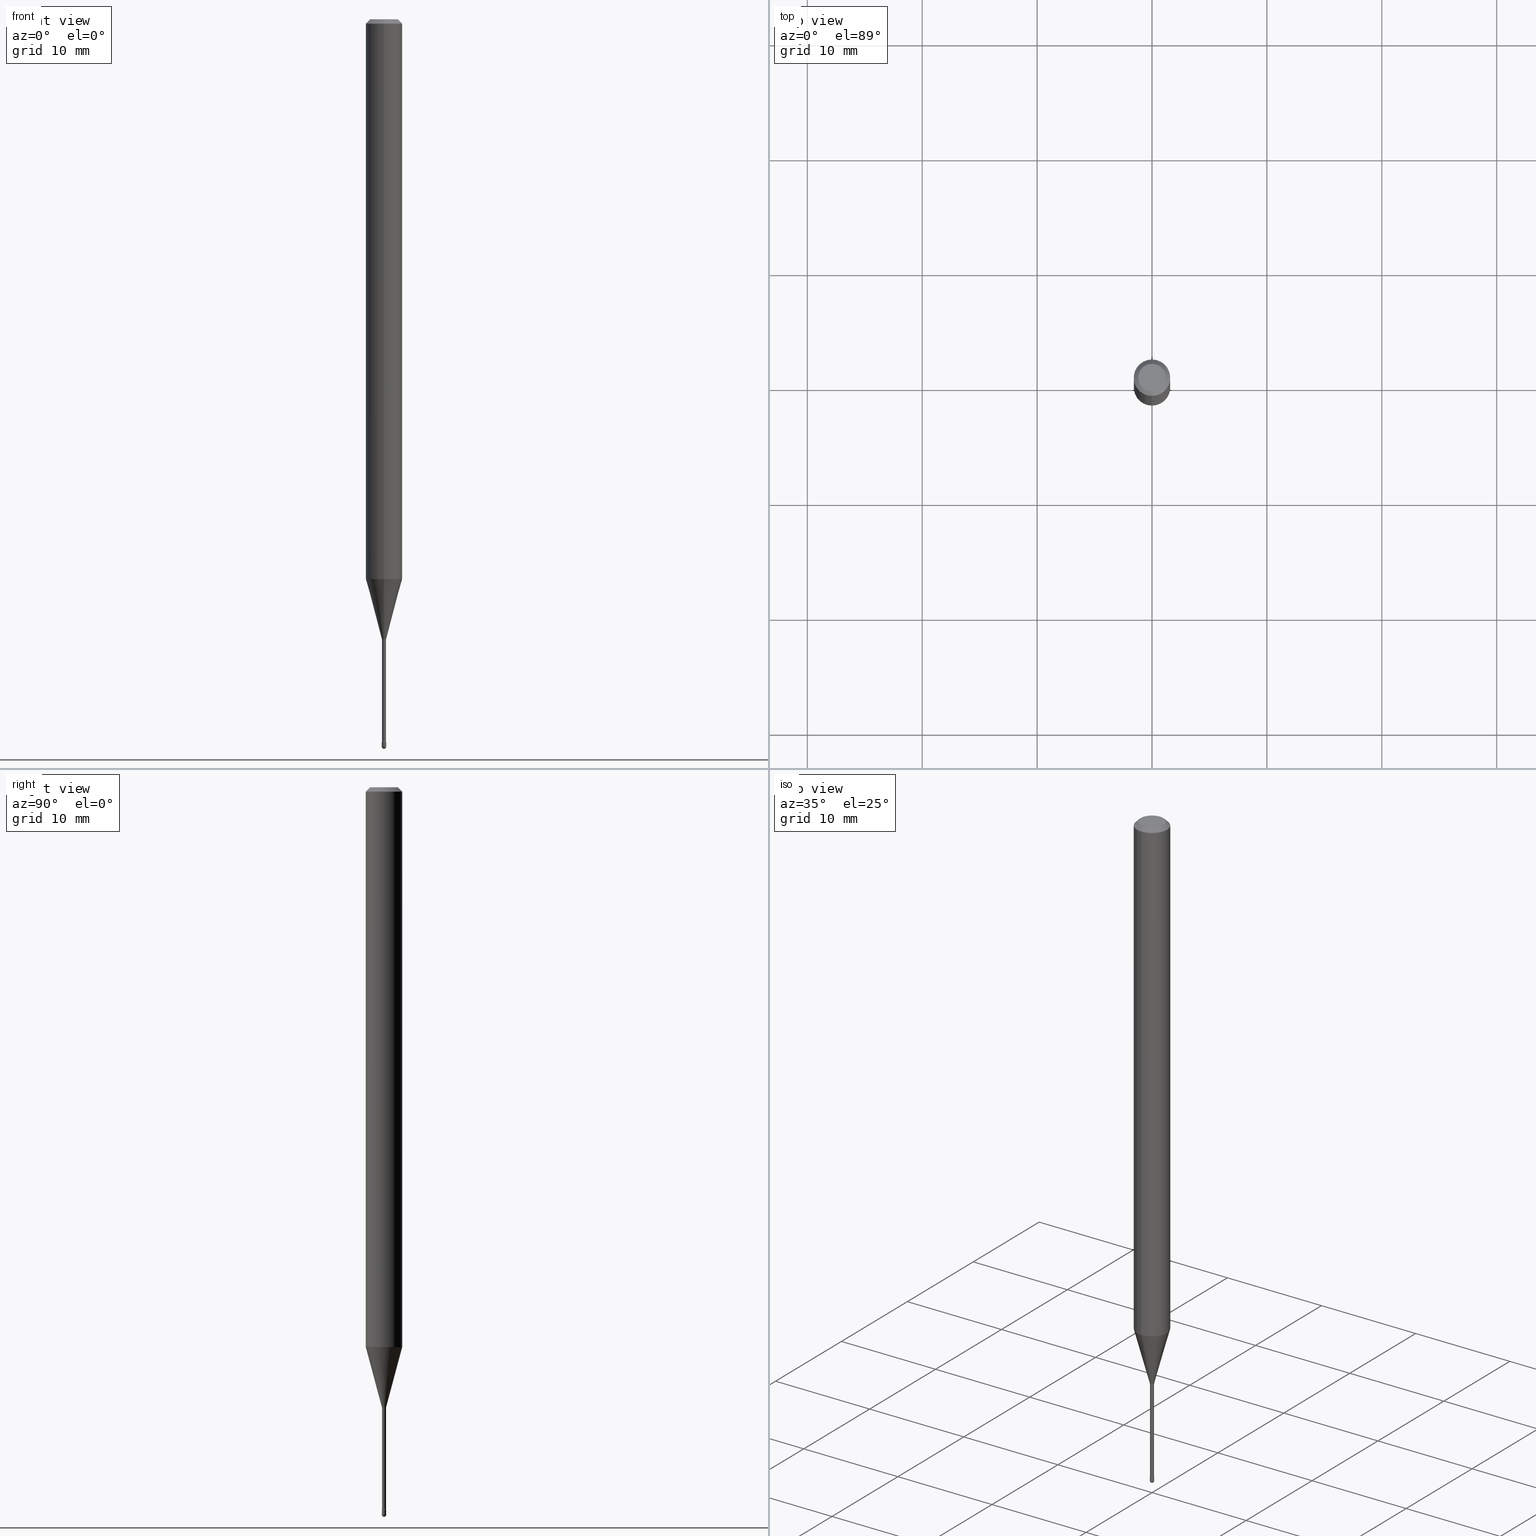
[diagram: canonical four-view strip — front | top / right | iso, engineering-drawing reading convention]
A machine part, canonical four-view strip (front | top / right | iso — engineering-drawing reading convention). The complete STEP part file that produces these views, byte-faithful:
ISO-10303-21;
HEADER;
FILE_DESCRIPTION (( 'STEP AP203' ),
    '1' );
FILE_NAME ('03968.STEP',
    '2024-04-09T21:31:44',
    ( '' ),
    ( '' ),
    'SwSTEP 2.0',
    'SolidWorks 2023',
    '' );
FILE_SCHEMA (( 'CONFIG_CONTROL_DESIGN' ));
ENDSEC;

DATA;
#1 = DIRECTION ( 'NONE',  ( 2.445474421698968540E-29, -3.491473297107723247E-15, -1.000000000000000000 ) ) ;
#2 = PERSON ( 'UNSPECIFIED', 'UNSPECIFIED', 'UNSPECIFIED', ('UNSPECIFIED'), ('UNSPECIFIED'), ('UNSPECIFIED') ) ;
#3 = CARTESIAN_POINT ( 'NONE',  ( -5.279896712708281704E-17, -0.007561112605671394156, -2.123092501787273267 ) ) ;
#4 = APPROVAL_ROLE ( '' ) ;
#5 = DIRECTION ( 'NONE',  ( 4.937700262164548042E-15, 0.7071067811865451302, -0.7071067811865499042 ) ) ;
#6 =( LENGTH_UNIT ( ) NAMED_UNIT ( * ) SI_UNIT ( $, .METRE. ) );
#7 = CYLINDRICAL_SURFACE ( 'NONE', #492, 0.007050000000000006782 ) ;
#8 = APPROVAL_STATUS ( 'not_yet_approved' ) ;
#9 = DIRECTION ( 'NONE',  ( -2.445474421698968540E-29, 3.491473297107723247E-15, 1.000000000000000000 ) ) ;
#10 = TOROIDAL_SURFACE ( 'NONE', #489, 0.02205000000000000016, 0.01500000000000002373 ) ;
#11 = CIRCLE ( 'NONE', #258, 0.04749999999999999362 ) ;
#12 = SECURITY_CLASSIFICATION_LEVEL ( 'unclassified' ) ;
#13 = CARTESIAN_POINT ( 'NONE',  ( 3.316907271900976096E-16, 0.04749999999999999362, 3.181801080601721804E-17 ) ) ;
#14 = ADVANCED_FACE ( 'NONE', ( #355 ), #7, .T. ) ;
#15 = FACE_OUTER_BOUND ( 'NONE', #298, .T. ) ;
#16 = PERSON_AND_ORGANIZATION ( #2, #315 ) ;
#17 = DIMENSIONAL_EXPONENTS ( 1.000000000000000000, 0.000000000000000000, 0.000000000000000000, 0.000000000000000000, 0.000000000000000000, 0.000000000000000000, 0.000000000000000000 ) ;
#18 = PERSON_AND_ORGANIZATION ( #2, #315 ) ;
#19 = VECTOR ( 'NONE', #525, 39.37007874015748143 ) ;
#20 = DIRECTION ( 'NONE',  ( -6.982962677686265922E-15, -1.000000000000000000, 3.491473297107723247E-15 ) ) ;
#21 = SECURITY_CLASSIFICATION ( '', '', #12 ) ;
#22 = DIRECTION ( 'NONE',  ( 6.982962677686265922E-15, 1.000000000000000000, -3.491473297107723247E-15 ) ) ;
#23 = EDGE_CURVE ( 'NONE', #381, #342, #316, .T. ) ;
#24 = CC_DESIGN_PERSON_AND_ORGANIZATION_ASSIGNMENT ( #160, #113, ( #21 ) ) ;
#25 = AXIS2_PLACEMENT_3D ( 'NONE', #116, #70, #158 ) ;
#26 = AXIS2_PLACEMENT_3D ( 'NONE', #554, #365, #132 ) ;
#27 = LOCAL_TIME ( 17, 31, 44.00000000000000000, #537 ) ;
#28 = VERTEX_POINT ( 'NONE', #50 ) ;
#29 = EDGE_CURVE ( 'NONE', #34, #559, #229, .T. ) ;
#30 = ORIENTED_EDGE ( 'NONE', *, *, #157, .F. ) ;
#31 = VERTEX_POINT ( 'NONE', #189 ) ;
#32 = DIRECTION ( 'NONE',  ( -2.445474421698968540E-29, 3.491473297107723247E-15, 1.000000000000000000 ) ) ;
#33 = DIRECTION ( 'NONE',  ( 2.445474421698967980E-29, -3.491473297107723247E-15, -1.000000000000000000 ) ) ;
#34 = VERTEX_POINT ( 'NONE', #97 ) ;
#35 = MANIFOLD_SOLID_BREP ( 'Body-Move/Copy2[2]', #124 ) ;
#36 = PERSON_AND_ORGANIZATION ( #2, #315 ) ;
#37 = CYLINDRICAL_SURFACE ( 'NONE', #82, 0.007050000000000006782 ) ;
#38 = CARTESIAN_POINT ( 'NONE',  ( 3.840629472727447874E-16, 0.04749999999999999362, -2.485923956665947867E-16 ) ) ;
#39 = ORIENTED_EDGE ( 'NONE', *, *, #308, .T. ) ;
#40 = CIRCLE ( 'NONE', #324, 0.06250000000000000000 ) ;
#41 = AXIS2_PLACEMENT_3D ( 'NONE', #172, #337, #479 ) ;
#42 = ORIENTED_EDGE ( 'NONE', *, *, #190, .F. ) ;
#43 = FACE_OUTER_BOUND ( 'NONE', #349, .T. ) ;
#44 = VERTEX_POINT ( 'NONE', #3 ) ;
#45 = DIRECTION ( 'NONE',  ( -2.445474421698968540E-29, 3.491473297107723247E-15, 1.000000000000000000 ) ) ;
#46 = DIRECTION ( 'NONE',  ( -6.982962677686265922E-15, -1.000000000000000000, 0.000000000000000000 ) ) ;
#47 = CARTESIAN_POINT ( 'NONE',  ( 6.095330999416453954E-29, -8.702517237066541600E-15, -2.492500000000000160 ) ) ;
#48 = VECTOR ( 'NONE', #5, 39.37007874015748143 ) ;
#49 =( GEOMETRIC_REPRESENTATION_CONTEXT ( 3 ) GLOBAL_UNCERTAINTY_ASSIGNED_CONTEXT ( ( #395 ) ) GLOBAL_UNIT_ASSIGNED_CONTEXT ( ( #408, #150, #62 ) ) REPRESENTATION_CONTEXT ( 'NONE', 'WORKASPACE' ) );
#50 = CARTESIAN_POINT ( 'NONE',  ( 5.169198402660797072E-17, 0.007049999999991379135, -2.473353426265656907 ) ) ;
#51 = DIRECTION ( 'NONE',  ( 6.982962677686265922E-15, 1.000000000000000000, 0.000000000000000000 ) ) ;
#52 = CALENDAR_DATE ( 2024, 9, 4 ) ;
#53 = DIRECTION ( 'NONE',  ( 6.982962677686265922E-15, 1.000000000000000000, -3.483106191921935554E-15 ) ) ;
#54 = DIRECTION ( 'NONE',  ( 1.000000000000000000, -6.982962677686269077E-15, 0.000000000000000000 ) ) ;
#55 = CARTESIAN_POINT ( 'NONE',  ( 3.668211632548473147E-31, -5.237209945661613369E-17, -0.01500000000000008271 ) ) ;
#56 = DIRECTION ( 'NONE',  ( -6.982962677686266711E-15, -1.000000000000000000, 0.000000000000000000 ) ) ;
#57 = DIRECTION ( 'NONE',  ( -1.000000000000000000, 6.982962677686265922E-15, -4.883557194083112901E-29 ) ) ;
#58 = CALENDAR_DATE ( 2024, 9, 4 ) ;
#59 = CARTESIAN_POINT ( 'NONE',  ( 5.009326287114761939E-17, 0.007049999999992573492, -2.126974787463811190 ) ) ;
#60 = AXIS2_PLACEMENT_3D ( 'NONE', #262, #276, #461 ) ;
#61 = CIRCLE ( 'NONE', #560, 0.007050000000000014588 ) ;
#62 =( NAMED_UNIT ( * ) SI_UNIT ( $, .STERADIAN. ) SOLID_ANGLE_UNIT ( ) );
#63 = EDGE_CURVE ( 'NONE', #222, #28, #564, .T. ) ;
#64 = DIRECTION ( 'NONE',  ( -4.851104656540964275E-15, -0.7071067811865500152, -0.7071067811865450192 ) ) ;
#65 = APPLICATION_PROTOCOL_DEFINITION ( 'international standard', 'config_control_design', 1994, #96 ) ;
#66 = APPROVAL ( #287, 'UNSPECIFIED' ) ;
#67 = CARTESIAN_POINT ( 'NONE',  ( 6.095330999416453954E-29, -8.702517237066541600E-15, -2.492500000000000160 ) ) ;
#68 = EDGE_CURVE ( 'NONE', #44, #476, #527, .T. ) ;
#69 = DIRECTION ( 'NONE',  ( 1.000000000000000000, -6.982962677686269077E-15, 0.000000000000000000 ) ) ;
#70 = DIRECTION ( 'NONE',  ( -2.445474421698968540E-29, 3.491473297107723247E-15, 1.000000000000000000 ) ) ;
#71 = CONICAL_SURFACE ( 'NONE', #542, 0.06250000000000000000, 0.7853981633974483900 ) ;
#72 = CARTESIAN_POINT ( 'NONE',  ( 6.095330999416453954E-29, -8.702517237066541600E-15, -2.492500000000000160 ) ) ;
#73 = PLANE ( 'NONE',  #322 ) ;
#74 = AXIS2_PLACEMENT_3D ( 'NONE', #268, #463, #240 ) ;
#75 = ADVANCED_FACE ( 'NONE', ( #153 ), #280, .T. ) ;
#76 = FACE_OUTER_BOUND ( 'NONE', #163, .T. ) ;
#77 = EDGE_CURVE ( 'NONE', #326, #89, #283, .T. ) ;
#78 = ORIENTED_EDGE ( 'NONE', *, *, #63, .T. ) ;
#79 = ORIENTED_EDGE ( 'NONE', *, *, #306, .F. ) ;
#80 = DIRECTION ( 'NONE',  ( 7.105427357601000281E-15, 1.000000000000000000, 0.000000000000000000 ) ) ;
#81 = AXIS2_PLACEMENT_3D ( 'NONE', #194, #369, #69 ) ;
#82 = AXIS2_PLACEMENT_3D ( 'NONE', #225, #135, #490 ) ;
#83 = EDGE_LOOP ( 'NONE', ( #388, #197, #178, #441 ) ) ;
#84 = AXIS2_PLACEMENT_3D ( 'NONE', #72, #252, #475 ) ;
#85 = EDGE_LOOP ( 'NONE', ( #409, #95 ) ) ;
#86 = CARTESIAN_POINT ( 'NONE',  ( 4.690561246983147435E-29, -6.696847530677596410E-15, -1.918057782720306470 ) ) ;
#87 = ORIENTED_EDGE ( 'NONE', *, *, #29, .F. ) ;
#88 = CARTESIAN_POINT ( 'NONE',  ( 5.201450494285011202E-29, -7.426292778619762925E-15, -2.126974787463811190 ) ) ;
#89 = VERTEX_POINT ( 'NONE', #400 ) ;
#90 = EDGE_LOOP ( 'NONE', ( #78, #128, #431, #437 ) ) ;
#91 = LINE ( 'NONE', #340, #48 ) ;
#92 = DIRECTION ( 'NONE',  ( 1.000000000000000000, 0.000000000000000000, 0.000000000000000000 ) ) ;
#93 = AXIS2_PLACEMENT_3D ( 'NONE', #273, #458, #54 ) ;
#94 = CARTESIAN_POINT ( 'NONE',  ( -0.007499999999999998855, -8.622167551508499156E-15, -2.492500000000000160 ) ) ;
#95 = ORIENTED_EDGE ( 'NONE', *, *, #471, .F. ) ;
#96 = APPLICATION_CONTEXT ( 'configuration controlled 3d designs of mechanical parts and assemblies' ) ;
#97 = CARTESIAN_POINT ( 'NONE',  ( 6.113992702821284393E-29, -8.728244104558185096E-15, -2.500000000000000000 ) ) ;
#98 = ADVANCED_FACE ( 'NONE', ( #184 ), #451, .T. ) ;
#99 = CARTESIAN_POINT ( 'NONE',  ( 0.007499999999999998855, -8.727830476773153796E-15, -2.492500000000000160 ) ) ;
#100 = CARTESIAN_POINT ( 'NONE',  ( -5.279896712708281704E-17, -0.007561112605671394156, -2.123092501787273267 ) ) ;
#101 = DIRECTION ( 'NONE',  ( 6.982962677686265922E-15, 1.000000000000000000, -3.483106191921935554E-15 ) ) ;
#102 = CIRCLE ( 'NONE', #421, 0.007499999999999999722 ) ;
#103 = DIRECTION ( 'NONE',  ( -6.982962677686265922E-15, -1.000000000000000000, 0.000000000000000000 ) ) ;
#104 = CARTESIAN_POINT ( 'NONE',  ( 4.440892098501092576E-16, 0.06249999999999329009, -1.918057782720306692 ) ) ;
#105 = CARTESIAN_POINT ( 'NONE',  ( 5.237222008270756882E-17, 0.007499999999991352126, -2.476999999999999869 ) ) ;
#106 = EDGE_CURVE ( 'NONE', #31, #513, #168, .T. ) ;
#107 = CARTESIAN_POINT ( 'NONE',  ( 6.095330999416453954E-29, -8.702517237066541600E-15, -2.492500000000000160 ) ) ;
#108 = PERSON_AND_ORGANIZATION_ROLE ( 'creator' ) ;
#109 = DIRECTION ( 'NONE',  ( -6.982962677686265922E-15, -1.000000000000000000, 3.491473297107723247E-15 ) ) ;
#110 = ORIENTED_EDGE ( 'NONE', *, *, #312, .T. ) ;
#111 = LINE ( 'NONE', #464, #192 ) ;
#112 = VECTOR ( 'NONE', #438, 39.37007874015748143 ) ;
#113 = PERSON_AND_ORGANIZATION_ROLE ( 'classification_officer' ) ;
#114 = ORIENTED_EDGE ( 'NONE', *, *, #77, .F. ) ;
#115 = CARTESIAN_POINT ( 'NONE',  ( -0.007499999999999998855, 5.329070518200750581E-17, -3.689201317691178390E-31 ) ) ;
#116 = CARTESIAN_POINT ( 'NONE',  ( 6.057440142548344634E-29, -8.648379356935830390E-15, -2.476999999999999869 ) ) ;
#117 = ORIENTED_EDGE ( 'NONE', *, *, #478, .T. ) ;
#118 = CARTESIAN_POINT ( 'NONE',  ( -5.237222008258655879E-17, -0.007500000000008666401, -2.476999999999999869 ) ) ;
#119 = CIRCLE ( 'NONE', #246, 0.007561112605663981683 ) ;
#120 = VERTEX_POINT ( 'NONE', #472 ) ;
#121 = ORIENTED_EDGE ( 'NONE', *, *, #233, .F. ) ;
#122 = ORIENTED_EDGE ( 'NONE', *, *, #224, .T. ) ;
#123 = VECTOR ( 'NONE', #497, 39.37007874015748143 ) ;
#124 = CLOSED_SHELL ( 'NONE', ( #383, #14, #426, #389, #279, #250, #75, #514, #376, #430, #187, #130, #501, #366 ) ) ;
#125 = EDGE_CURVE ( 'NONE', #518, #120, #502, .T. ) ;
#126 = DIRECTION ( 'NONE',  ( -6.982962677686265922E-15, -1.000000000000000000, 0.000000000000000000 ) ) ;
#127 = ORIENTED_EDGE ( 'NONE', *, *, #452, .T. ) ;
#128 = ORIENTED_EDGE ( 'NONE', *, *, #351, .T. ) ;
#129 = ORIENTED_EDGE ( 'NONE', *, *, #68, .F. ) ;
#130 = ADVANCED_FACE ( 'NONE', ( #274 ), #219, .F. ) ;
#131 = DIRECTION ( 'NONE',  ( -2.445474421698968540E-29, 3.491473297107723247E-15, 1.000000000000000000 ) ) ;
#132 = DIRECTION ( 'NONE',  ( 1.000000000000000000, -6.982962677686268288E-15, 0.000000000000000000 ) ) ;
#133 = ORIENTED_EDGE ( 'NONE', *, *, #157, .T. ) ;
#134 = DIRECTION ( 'NONE',  ( -6.982962677686265922E-15, -1.000000000000000000, 3.491473297107722064E-15 ) ) ;
#135 = DIRECTION ( 'NONE',  ( -2.445474421698968540E-29, 3.491473297107723247E-15, 1.000000000000000000 ) ) ;
#136 = EDGE_LOOP ( 'NONE', ( #179, #256 ) ) ;
#137 = CARTESIAN_POINT ( 'NONE',  ( 5.191968408021648004E-29, -7.412720777279894928E-15, -2.123092501787273267 ) ) ;
#138 = AXIS2_PLACEMENT_3D ( 'NONE', #313, #417, #103 ) ;
#139 = FACE_OUTER_BOUND ( 'NONE', #427, .T. ) ;
#140 = CC_DESIGN_APPROVAL ( #66, ( #359 ) ) ;
#141 = EDGE_CURVE ( 'NONE', #382, #378, #11, .T. ) ;
#142 = DIRECTION ( 'NONE',  ( -2.445474421698968540E-29, 3.491473297107723247E-15, 1.000000000000000000 ) ) ;
#143 = EDGE_CURVE ( 'NONE', #513, #559, #325, .T. ) ;
#144 = CARTESIAN_POINT ( 'NONE',  ( 0.000000000000000000, 0.000000000000000000, 0.000000000000000000 ) ) ;
#145 = DIRECTION ( 'NONE',  ( 1.000000000000000000, -7.105427357601001070E-15, 4.926315410059227028E-29 ) ) ;
#146 = APPLICATION_CONTEXT ( 'configuration controlled 3d designs of mechanical parts and assemblies' ) ;
#147 = DIRECTION ( 'NONE',  ( -2.445474421698967980E-29, 3.491473297107723247E-15, 1.000000000000000000 ) ) ;
#148 = CARTESIAN_POINT ( 'NONE',  ( -4.364351673553916201E-16, -0.06250000000000000000, 6.962904799604786922E-16 ) ) ;
#149 = DESIGN_CONTEXT ( 'detailed design', #96, 'design' ) ;
#150 =( NAMED_UNIT ( * ) PLANE_ANGLE_UNIT ( ) SI_UNIT ( $, .RADIAN. ) );
#151 = CARTESIAN_POINT ( 'NONE',  ( 0.007499999999999999722, -8.700771496397117730E-15, -2.476999999999999869 ) ) ;
#152 = CIRCLE ( 'NONE', #307, 0.06250000000000000000 ) ;
#153 = FACE_OUTER_BOUND ( 'NONE', #449, .T. ) ;
#154 = FACE_OUTER_BOUND ( 'NONE', #522, .T. ) ;
#155 = FACE_OUTER_BOUND ( 'NONE', #556, .T. ) ;
#156 = FACE_OUTER_BOUND ( 'NONE', #552, .T. ) ;
#157 = EDGE_CURVE ( 'NONE', #34, #31, #254, .T. ) ;
#158 = DIRECTION ( 'NONE',  ( -6.982962677686265922E-15, -1.000000000000000000, 0.000000000000000000 ) ) ;
#159 = EDGE_CURVE ( 'NONE', #28, #222, #61, .T. ) ;
#160 = PERSON_AND_ORGANIZATION ( #2, #315 ) ;
#161 = AXIS2_PLACEMENT_3D ( 'NONE', #328, #508, #425 ) ;
#162 = CLOSED_SHELL ( 'NONE', ( #565, #253, #541, #98, #169 ) ) ;
#163 = EDGE_LOOP ( 'NONE', ( #392, #440, #117, #114 ) ) ;
#164 = APPROVAL_DATE_TIME ( #539, #66 ) ;
#165 = EDGE_CURVE ( 'NONE', #28, #120, #553, .T. ) ;
#166 = VECTOR ( 'NONE', #181, 39.37007874015748143 ) ;
#167 = CC_DESIGN_SECURITY_CLASSIFICATION ( #21, ( #563 ) ) ;
#168 = CIRCLE ( 'NONE', #247, 0.007499999999999998855 ) ;
#169 = ADVANCED_FACE ( 'NONE', ( #428 ), #548, .T. ) ;
#170 = DATE_AND_TIME ( #433, #228 ) ;
#171 = ORIENTED_EDGE ( 'NONE', *, *, #205, .F. ) ;
#172 = CARTESIAN_POINT ( 'NONE',  ( 0.000000000000000000, 0.000000000000000000, 0.000000000000000000 ) ) ;
#173 = ORIENTED_EDGE ( 'NONE', *, *, #106, .T. ) ;
#174 = ORIENTED_EDGE ( 'NONE', *, *, #306, .T. ) ;
#175 = CIRCLE ( 'NONE', #93, 0.007499999999999998855 ) ;
#176 = DIRECTION ( 'NONE',  ( -2.438088387897960049E-29, 3.491481338843145188E-15, 1.000000000000000000 ) ) ;
#177 = CC_DESIGN_PERSON_AND_ORGANIZATION_ASSIGNMENT ( #36, #245, ( #363 ) ) ;
#178 = ORIENTED_EDGE ( 'NONE', *, *, #210, .T. ) ;
#179 = ORIENTED_EDGE ( 'NONE', *, *, #419, .T. ) ;
#180 = PLANE ( 'NONE',  #206 ) ;
#181 = DIRECTION ( 'NONE',  ( -2.445474421698968540E-29, 3.491473297107723247E-15, 1.000000000000000000 ) ) ;
#182 = EDGE_CURVE ( 'NONE', #397, #476, #529, .T. ) ;
#183 = AXIS2_PLACEMENT_3D ( 'NONE', #404, #524, #46 ) ;
#184 = FACE_OUTER_BOUND ( 'NONE', #304, .T. ) ;
#185 = DATE_AND_TIME ( #52, #208 ) ;
#186 = AXIS2_PLACEMENT_3D ( 'NONE', #47, #465, #51 ) ;
#187 = ADVANCED_FACE ( 'NONE', ( #311 ), #180, .F. ) ;
#188 = PERSON_AND_ORGANIZATION ( #2, #315 ) ;
#189 = CARTESIAN_POINT ( 'NONE',  ( 5.237222008270768592E-17, 0.007499999999991259318, -2.492500000000000160 ) ) ;
#190 = EDGE_CURVE ( 'NONE', #555, #31, #561, .T. ) ;
#191 = CARTESIAN_POINT ( 'NONE',  ( -3.773273898774340269E-16, -0.04749999999999999362, 8.309756755863891883E-17 ) ) ;
#192 = VECTOR ( 'NONE', #282, 39.37007874015748143 ) ;
#193 = AXIS2_PLACEMENT_3D ( 'NONE', #533, #370, #92 ) ;
#194 = CARTESIAN_POINT ( 'NONE',  ( 6.095330999416453954E-29, -8.702517237066541600E-15, -2.492500000000000160 ) ) ;
#195 = CARTESIAN_POINT ( 'NONE',  ( 6.048508650603792991E-29, -8.635667332170297409E-15, -2.473353426265656907 ) ) ;
#196 = EDGE_CURVE ( 'NONE', #378, #342, #536, .T. ) ;
#197 = ORIENTED_EDGE ( 'NONE', *, *, #196, .T. ) ;
#198 = CARTESIAN_POINT ( 'NONE',  ( -1.539743270429219861E-16, -0.02205000000000867724, -2.473353426265656907 ) ) ;
#199 = CALENDAR_DATE ( 2024, 9, 4 ) ;
#200 = CIRCLE ( 'NONE', #138, 0.007049999999999998976 ) ;
#201 = CALENDAR_DATE ( 2024, 9, 4 ) ;
#202 = CARTESIAN_POINT ( 'NONE',  ( 2.023593691585208939E-45, -2.889065420343938692E-31, -8.274741405397793394E-17 ) ) ;
#203 = DIRECTION ( 'NONE',  ( -6.982962677686265922E-15, -1.000000000000000000, 0.000000000000000000 ) ) ;
#204 = EDGE_CURVE ( 'NONE', #89, #326, #200, .T. ) ;
#205 = EDGE_CURVE ( 'NONE', #559, #555, #175, .T. ) ;
#206 = AXIS2_PLACEMENT_3D ( 'NONE', #105, #147, #462 ) ;
#207 = ORIENTED_EDGE ( 'NONE', *, *, #196, .F. ) ;
#208 = LOCAL_TIME ( 17, 31, 44.00000000000000000, #456 ) ;
#209 = CC_DESIGN_PERSON_AND_ORGANIZATION_ASSIGNMENT ( #16, #108, ( #563 ) ) ;
#210 = EDGE_CURVE ( 'NONE', #342, #381, #40, .T. ) ;
#211 = EDGE_LOOP ( 'NONE', ( #448, #110, #520, #385 ) ) ;
#212 = ORIENTED_EDGE ( 'NONE', *, *, #23, .F. ) ;
#213 = DIRECTION ( 'NONE',  ( -6.982962677686265922E-15, -1.000000000000000000, 3.483106191921935554E-15 ) ) ;
#214 = ORIENTED_EDGE ( 'NONE', *, *, #224, .F. ) ;
#215 = ORIENTED_EDGE ( 'NONE', *, *, #159, .F. ) ;
#216 = LINE ( 'NONE', #221, #123 ) ;
#217 = ORIENTED_EDGE ( 'NONE', *, *, #182, .F. ) ;
#218 = CONICAL_SURFACE ( 'NONE', #227, 0.007561112605663981683, 0.2617993877991501850 ) ;
#219 = TOROIDAL_SURFACE ( 'NONE', #507, 0.02205000000000004179, 0.01500000000000002720 ) ;
#220 = ORIENTED_EDGE ( 'NONE', *, *, #232, .T. ) ;
#221 = CARTESIAN_POINT ( 'NONE',  ( 5.009326287108710513E-17, 0.007050000000000006782, 4.534585121466366088E-16 ) ) ;
#222 = VERTEX_POINT ( 'NONE', #499 ) ;
#223 = APPLICATION_PROTOCOL_DEFINITION ( 'international standard', 'config_control_design', 1994, #146 ) ;
#224 = EDGE_CURVE ( 'NONE', #555, #379, #111, .T. ) ;
#225 = CARTESIAN_POINT ( 'NONE',  ( -1.169113584055446105E-44, 1.669184350826100908E-30, 4.780733988912460139E-16 ) ) ;
#226 = ORIENTED_EDGE ( 'NONE', *, *, #269, .T. ) ;
#227 = AXIS2_PLACEMENT_3D ( 'NONE', #270, #538, #357 ) ;
#228 = LOCAL_TIME ( 17, 31, 44.00000000000000000, #473 ) ;
#229 = CIRCLE ( 'NONE', #511, 0.007499999999999925129 ) ;
#230 = DATE_TIME_ROLE ( 'creation_date' ) ;
#231 = MANIFOLD_SOLID_BREP ( 'Body-Move/Copy2[1]', #162 ) ;
#232 = EDGE_CURVE ( 'NONE', #222, #518, #469, .T. ) ;
#233 = EDGE_CURVE ( 'NONE', #336, #397, #416, .T. ) ;
#234 = DIRECTION ( 'NONE',  ( -1.000000000000000000, 7.105427357601001070E-15, -4.926315508542082329E-29 ) ) ;
#235 = FACE_OUTER_BOUND ( 'NONE', #547, .T. ) ;
#236 = CARTESIAN_POINT ( 'NONE',  ( 5.372493636223856207E-17, 0.007561112605656569209, -2.123092501787273267 ) ) ;
#237 = DIRECTION ( 'NONE',  ( -2.445468806185136597E-29, 3.491481338843145583E-15, 1.000000000000000000 ) ) ;
#238 = CC_DESIGN_PERSON_AND_ORGANIZATION_ASSIGNMENT ( #290, #327, ( #359 ) ) ;
#239 = SHAPE_DEFINITION_REPRESENTATION ( #277, #251 ) ;
#240 = DIRECTION ( 'NONE',  ( -6.982962677686265922E-15, -1.000000000000000000, 0.000000000000000000 ) ) ;
#241 = CARTESIAN_POINT ( 'NONE',  ( -4.364351673553912750E-16, -0.06250000000000005551, -0.01499999999999986587 ) ) ;
#242 = VECTOR ( 'NONE', #64, 39.37007874015748143 ) ;
#243 = APPROVAL_PERSON_ORGANIZATION ( #373, #374, #540 ) ;
#244 = APPROVAL_STATUS ( 'not_yet_approved' ) ;
#245 = PERSON_AND_ORGANIZATION_ROLE ( 'design_owner' ) ;
#246 = AXIS2_PLACEMENT_3D ( 'NONE', #137, #45, #398 ) ;
#247 = AXIS2_PLACEMENT_3D ( 'NONE', #310, #329, #332 ) ;
#248 = CARTESIAN_POINT ( 'NONE',  ( -4.364351673553447322E-16, -0.06250000000000668909, -1.918057782720306248 ) ) ;
#249 = CYLINDRICAL_SURFACE ( 'NONE', #161, 0.06250000000000000000 ) ;
#250 = ADVANCED_FACE ( 'NONE', ( #156 ), #218, .T. ) ;
#251 = ADVANCED_BREP_SHAPE_REPRESENTATION ( '03968', ( #231, #35, #193 ), #49 ) ;
#252 = DIRECTION ( 'NONE',  ( 1.000000000000000000, -6.982962677686265922E-15, 4.883557194083112340E-29 ) ) ;
#253 = ADVANCED_FACE ( 'NONE', ( #15 ), #531, .T. ) ;
#254 = CIRCLE ( 'NONE', #84, 0.007499999999999925129 ) ;
#255 = AXIS2_PLACEMENT_3D ( 'NONE', #339, #261, #443 ) ;
#256 = ORIENTED_EDGE ( 'NONE', *, *, #423, .T. ) ;
#257 = LINE ( 'NONE', #148, #551 ) ;
#258 = AXIS2_PLACEMENT_3D ( 'NONE', #202, #321, #411 ) ;
#259 = ORIENTED_EDGE ( 'NONE', *, *, #125, .T. ) ;
#260 = CC_DESIGN_DATE_AND_TIME_ASSIGNMENT ( #170, #230, ( #359 ) ) ;
#261 = DIRECTION ( 'NONE',  ( -2.445474421698968540E-29, 3.491473297107723247E-15, 1.000000000000000000 ) ) ;
#262 = CARTESIAN_POINT ( 'NONE',  ( 6.057426232920582713E-29, -8.648399276314471045E-15, -2.476999999999999869 ) ) ;
#263 = ORIENTED_EDGE ( 'NONE', *, *, #68, .T. ) ;
#264 = CARTESIAN_POINT ( 'NONE',  ( 2.489070731061741502E-16, 0.007561112605656570944, -2.123092501787273267 ) ) ;
#265 = AXIS2_PLACEMENT_3D ( 'NONE', #484, #145, #415 ) ;
#266 = ORIENTED_EDGE ( 'NONE', *, *, #318, .T. ) ;
#267 = DIRECTION ( 'NONE',  ( -6.982962677686265922E-15, -1.000000000000000000, 0.000000000000000000 ) ) ;
#268 = CARTESIAN_POINT ( 'NONE',  ( 5.191968408021648004E-29, -7.412720777279894928E-15, -2.123092501787273267 ) ) ;
#269 = EDGE_CURVE ( 'NONE', #513, #333, #414, .T. ) ;
#270 = CARTESIAN_POINT ( 'NONE',  ( 5.191968408021648004E-29, -7.412720777279894928E-15, -2.123092501787273267 ) ) ;
#271 = TOROIDAL_SURFACE ( 'NONE', #338, 0.02205000000000004179, 0.01500000000000002720 ) ;
#272 = CARTESIAN_POINT ( 'NONE',  ( 4.440892098501097506E-16, 0.06249999999999995143, -0.01500000000000030129 ) ) ;
#273 = CARTESIAN_POINT ( 'NONE',  ( 6.095330999416453954E-29, -8.702517237066541600E-15, -2.492500000000000160 ) ) ;
#274 = FACE_OUTER_BOUND ( 'NONE', #347, .T. ) ;
#275 = DIRECTION ( 'NONE',  ( -6.982962677686265133E-15, -1.000000000000000000, 3.491473297107726797E-15 ) ) ;
#276 = DIRECTION ( 'NONE',  ( -2.445468806185136597E-29, 3.491481338843145583E-15, 1.000000000000000000 ) ) ;
#277 = PRODUCT_DEFINITION_SHAPE ( 'NONE', 'NONE',  #359 ) ;
#278 = DIRECTION ( 'NONE',  ( -2.445474421698968540E-29, 3.491473297107723247E-15, 1.000000000000000000 ) ) ;
#279 = ADVANCED_FACE ( 'NONE', ( #446 ), #557, .T. ) ;
#280 = CONICAL_SURFACE ( 'NONE', #74, 0.007561112605663981683, 0.2617993877991501850 ) ;
#281 = CIRCLE ( 'NONE', #265, 0.01500000000000002373 ) ;
#282 = DIRECTION ( 'NONE',  ( -2.445468806185136877E-29, 3.491481338843145188E-15, 1.000000000000000000 ) ) ;
#283 = CIRCLE ( 'NONE', #183, 0.007049999999999998976 ) ;
#284 = DIRECTION ( 'NONE',  ( -2.445474421698968540E-29, 3.491473297107723247E-15, 1.000000000000000000 ) ) ;
#285 = DATE_AND_TIME ( #199, #27 ) ;
#286 = DIRECTION ( 'NONE',  ( 6.982962677686265922E-15, 1.000000000000000000, 0.000000000000000000 ) ) ;
#287 = APPROVAL_STATUS ( 'not_yet_approved' ) ;
#288 = EDGE_CURVE ( 'NONE', #397, #381, #407, .T. ) ;
#289 = CARTESIAN_POINT ( 'NONE',  ( 3.668211632548473147E-31, -5.237209945661613369E-17, -0.01500000000000008271 ) ) ;
#290 = PERSON_AND_ORGANIZATION ( #2, #315 ) ;
#291 = DIRECTION ( 'NONE',  ( 1.000000000000000000, -6.982962677686269077E-15, 0.000000000000000000 ) ) ;
#292 = AXIS2_PLACEMENT_3D ( 'NONE', #405, #1, #101 ) ;
#293 = VECTOR ( 'NONE', #450, 39.37007874015749564 ) ;
#294 = DIRECTION ( 'NONE',  ( -2.445474421698968540E-29, 3.491473297107723247E-15, 1.000000000000000000 ) ) ;
#295 = ORIENTED_EDGE ( 'NONE', *, *, #106, .F. ) ;
#296 = ORIENTED_EDGE ( 'NONE', *, *, #141, .T. ) ;
#297 = AXIS2_PLACEMENT_3D ( 'NONE', #495, #142, #134 ) ;
#298 = EDGE_LOOP ( 'NONE', ( #30, #350, #384, #295 ) ) ;
#299 = DIRECTION ( 'NONE',  ( 1.000000000000000000, -7.105427357601001070E-15, 4.926315410059227028E-29 ) ) ;
#300 = ORIENTED_EDGE ( 'NONE', *, *, #406, .T. ) ;
#301 = FACE_OUTER_BOUND ( 'NONE', #372, .T. ) ;
#302 = EDGE_LOOP ( 'NONE', ( #390, #434, #549, #436 ) ) ;
#303 = ORIENTED_EDGE ( 'NONE', *, *, #471, .T. ) ;
#304 = EDGE_LOOP ( 'NONE', ( #87, #133, #42, #171 ) ) ;
#305 = DIRECTION ( 'NONE',  ( -1.000000000000000000, 6.982962677686265922E-15, -4.883557194083112901E-29 ) ) ;
#306 = EDGE_CURVE ( 'NONE', #44, #336, #119, .T. ) ;
#307 = AXIS2_PLACEMENT_3D ( 'NONE', #410, #413, #498 ) ;
#308 = EDGE_CURVE ( 'NONE', #476, #342, #257, .T. ) ;
#309 = LENGTH_MEASURE_WITH_UNIT ( LENGTH_MEASURE( 0.02539999999999999897 ), #6 );
#310 = CARTESIAN_POINT ( 'NONE',  ( 6.095330999416453954E-29, -8.702517237066541600E-15, -2.492500000000000160 ) ) ;
#311 = FACE_OUTER_BOUND ( 'NONE', #85, .T. ) ;
#312 = EDGE_CURVE ( 'NONE', #336, #326, #281, .T. ) ;
#313 = CARTESIAN_POINT ( 'NONE',  ( 5.201462438341350070E-29, -7.426275674051270553E-15, -2.126974787463811190 ) ) ;
#314 = CONICAL_SURFACE ( 'NONE', #292, 0.06250000000000000000, 0.7853981633974483900 ) ;
#315 = ORGANIZATION ( 'UNSPECIFIED', 'UNSPECIFIED', '' ) ;
#316 = CIRCLE ( 'NONE', #544, 0.06250000000000000000 ) ;
#317 = FACE_OUTER_BOUND ( 'NONE', #83, .T. ) ;
#318 = EDGE_CURVE ( 'NONE', #382, #381, #91, .T. ) ;
#319 = APPROVAL_DATE_TIME ( #459, #374 ) ;
#320 = DIRECTION ( 'NONE',  ( -2.445474421698968540E-29, 3.491473297107723247E-15, 1.000000000000000000 ) ) ;
#321 = DIRECTION ( 'NONE',  ( -2.445474421698968540E-29, 3.491473297107723247E-15, 1.000000000000000000 ) ) ;
#322 = AXIS2_PLACEMENT_3D ( 'NONE', #558, #176, #496 ) ;
#323 = DATE_TIME_ROLE ( 'classification_date' ) ;
#324 = AXIS2_PLACEMENT_3D ( 'NONE', #289, #32, #213 ) ;
#325 = CIRCLE ( 'NONE', #331, 0.007499999999999998855 ) ;
#326 = VERTEX_POINT ( 'NONE', #59 ) ;
#327 = PERSON_AND_ORGANIZATION_ROLE ( 'creator' ) ;
#328 = CARTESIAN_POINT ( 'NONE',  ( -1.169113584055446105E-44, 1.669184350826100908E-30, 4.780733988912460139E-16 ) ) ;
#329 = DIRECTION ( 'NONE',  ( -2.445468806185136597E-29, 3.491481338843145583E-15, 1.000000000000000000 ) ) ;
#330 = AXIS2_PLACEMENT_3D ( 'NONE', #67, #418, #286 ) ;
#331 = AXIS2_PLACEMENT_3D ( 'NONE', #107, #237, #291 ) ;
#332 = DIRECTION ( 'NONE',  ( 1.000000000000000000, -6.982962677686269077E-15, 0.000000000000000000 ) ) ;
#333 = VERTEX_POINT ( 'NONE', #530 ) ;
#334 = ORIENTED_EDGE ( 'NONE', *, *, #190, .T. ) ;
#335 = ORIENTED_EDGE ( 'NONE', *, *, #288, .F. ) ;
#336 = VERTEX_POINT ( 'NONE', #264 ) ;
#337 = DIRECTION ( 'NONE',  ( -2.445468806185136597E-29, 3.491481338843145583E-15, 1.000000000000000000 ) ) ;
#338 = AXIS2_PLACEMENT_3D ( 'NONE', #195, #320, #535 ) ;
#339 = CARTESIAN_POINT ( 'NONE',  ( 5.191968408021648004E-29, -7.412720777279894928E-15, -2.123092501787273267 ) ) ;
#340 = CARTESIAN_POINT ( 'NONE',  ( 4.364351673553919652E-16, 0.06249999999999995143, -0.01500000000000030129 ) ) ;
#341 = ORIENTED_EDGE ( 'NONE', *, *, #233, .T. ) ;
#342 = VERTEX_POINT ( 'NONE', #241 ) ;
#343 = ORIENTED_EDGE ( 'NONE', *, *, #182, .T. ) ;
#344 = CARTESIAN_POINT ( 'NONE',  ( 6.057440142548344634E-29, -8.648379356935830390E-15, -2.476999999999999869 ) ) ;
#345 = ORIENTED_EDGE ( 'NONE', *, *, #312, .F. ) ;
#346 = ORIENTED_EDGE ( 'NONE', *, *, #232, .F. ) ;
#347 = EDGE_LOOP ( 'NONE', ( #521, #485, #220, #259 ) ) ;
#348 = DIRECTION ( 'NONE',  ( -6.982962677686266711E-15, -1.000000000000000000, 3.491473297107723247E-15 ) ) ;
#349 = EDGE_LOOP ( 'NONE', ( #335, #343, #39, #212 ) ) ;
#350 = ORIENTED_EDGE ( 'NONE', *, *, #29, .T. ) ;
#351 = EDGE_CURVE ( 'NONE', #28, #326, #216, .T. ) ;
#352 = AXIS2_PLACEMENT_3D ( 'NONE', #13, #33, #22 ) ;
#353 = LOCAL_TIME ( 17, 31, 44.00000000000000000, #420 ) ;
#354 = DIRECTION ( 'NONE',  ( -2.445474421698968540E-29, 3.491473297107723247E-15, 1.000000000000000000 ) ) ;
#355 = FACE_OUTER_BOUND ( 'NONE', #90, .T. ) ;
#356 = CARTESIAN_POINT ( 'NONE',  ( 3.668211632548473147E-31, -5.237209945661613369E-17, -0.01500000000000008271 ) ) ;
#357 = DIRECTION ( 'NONE',  ( -6.982962677686265922E-15, -1.000000000000000000, 0.000000000000000000 ) ) ;
#358 = DIRECTION ( 'NONE',  ( -2.445468806185136877E-29, 3.491481338843145188E-15, 1.000000000000000000 ) ) ;
#359 = PRODUCT_DEFINITION ( 'UNKNOWN', '', #563, #149 ) ;
#360 = CARTESIAN_POINT ( 'NONE',  ( 6.048522539754168576E-29, -8.635647442116437568E-15, -2.473353426265656907 ) ) ;
#361 = AXIS2_PLACEMENT_3D ( 'NONE', #198, #57, #453 ) ;
#362 = LOCAL_TIME ( 17, 31, 44.00000000000000000, #367 ) ;
#363 = PRODUCT ( '03968', '03968', '', ( #546 ) ) ;
#364 = APPROVAL_DATE_TIME ( #185, #523 ) ;
#365 = DIRECTION ( 'NONE',  ( -2.445468806185136597E-29, 3.491481338843145583E-15, 1.000000000000000000 ) ) ;
#366 = ADVANCED_FACE ( 'NONE', ( #235 ), #10, .F. ) ;
#367 = COORDINATED_UNIVERSAL_TIME_OFFSET ( 5, 0, .BEHIND. ) ;
#368 = PLANE ( 'NONE',  #352 ) ;
#369 = DIRECTION ( 'NONE',  ( -2.445468806185136597E-29, 3.491481338843145583E-15, 1.000000000000000000 ) ) ;
#370 = DIRECTION ( 'NONE',  ( 0.000000000000000000, 0.000000000000000000, 1.000000000000000000 ) ) ;
#371 = CIRCLE ( 'NONE', #528, 0.01500000000000002373 ) ;
#372 = EDGE_LOOP ( 'NONE', ( #207, #429, #266, #512 ) ) ;
#373 = PERSON_AND_ORGANIZATION ( #2, #315 ) ;
#374 = APPROVAL ( #244, 'UNSPECIFIED' ) ;
#375 = CIRCLE ( 'NONE', #60, 0.007499999999999999722 ) ;
#376 = ADVANCED_FACE ( 'NONE', ( #301 ), #314, .T. ) ;
#377 = AXIS2_PLACEMENT_3D ( 'NONE', #380, #299, #80 ) ;
#378 = VERTEX_POINT ( 'NONE', #191 ) ;
#379 = VERTEX_POINT ( 'NONE', #151 ) ;
#380 = CARTESIAN_POINT ( 'NONE',  ( 1.566746732351628344E-16, 0.02204999999999140634, -2.473353426265656907 ) ) ;
#381 = VERTEX_POINT ( 'NONE', #272 ) ;
#382 = VERTEX_POINT ( 'NONE', #38 ) ;
#383 = ADVANCED_FACE ( 'NONE', ( #481 ), #477, .F. ) ;
#384 = ORIENTED_EDGE ( 'NONE', *, *, #143, .F. ) ;
#385 = ORIENTED_EDGE ( 'NONE', *, *, #406, .F. ) ;
#386 = CIRCLE ( 'NONE', #26, 0.007499999999999999722 ) ;
#387 = CARTESIAN_POINT ( 'NONE',  ( -1.539743270429301459E-16, -0.02205000000000742824, -2.126974787463811190 ) ) ;
#388 = ORIENTED_EDGE ( 'NONE', *, *, #493, .F. ) ;
#389 = ADVANCED_FACE ( 'NONE', ( #317 ), #71, .T. ) ;
#390 = ORIENTED_EDGE ( 'NONE', *, *, #396, .T. ) ;
#391 = CARTESIAN_POINT ( 'NONE',  ( -4.922988687768821872E-17, -0.007050000000000006782, 5.026882856358555176E-16 ) ) ;
#392 = ORIENTED_EDGE ( 'NONE', *, *, #351, .F. ) ;
#393 = ORIENTED_EDGE ( 'NONE', *, *, #269, .F. ) ;
#394 = DIRECTION ( 'NONE',  ( -2.445474421698968540E-29, 3.491473297107723247E-15, 1.000000000000000000 ) ) ;
#395 = UNCERTAINTY_MEASURE_WITH_UNIT (LENGTH_MEASURE( 1.000000000000000082E-05 ), #408, 'distance_accuracy_value', 'NONE');
#396 = EDGE_CURVE ( 'NONE', #476, #397, #152, .T. ) ;
#397 = VERTEX_POINT ( 'NONE', #104 ) ;
#398 = DIRECTION ( 'NONE',  ( -6.982962677686265922E-15, -1.000000000000000000, 0.000000000000000000 ) ) ;
#399 = CYLINDRICAL_SURFACE ( 'NONE', #402, 0.007499999999999998855 ) ;
#400 = CARTESIAN_POINT ( 'NONE',  ( -4.922988687763615390E-17, -0.007050000000007425327, -2.126974787463811190 ) ) ;
#401 = AXIS2_PLACEMENT_3D ( 'NONE', #483, #294, #348 ) ;
#402 = AXIS2_PLACEMENT_3D ( 'NONE', #144, #447, #526 ) ;
#403 = APPROVAL_PERSON_ORGANIZATION ( #18, #66, #467 ) ;
#404 = CARTESIAN_POINT ( 'NONE',  ( 5.201462438341350070E-29, -7.426275674051270553E-15, -2.126974787463811190 ) ) ;
#405 = CARTESIAN_POINT ( 'NONE',  ( 3.668211632548473147E-31, -5.237209945661613369E-17, -0.01500000000000008271 ) ) ;
#406 = EDGE_CURVE ( 'NONE', #44, #89, #371, .T. ) ;
#407 = LINE ( 'NONE', #487, #166 ) ;
#408 =( CONVERSION_BASED_UNIT ( 'INCH', #309 ) LENGTH_UNIT ( ) NAMED_UNIT ( #17 ) );
#409 = ORIENTED_EDGE ( 'NONE', *, *, #125, .F. ) ;
#410 = CARTESIAN_POINT ( 'NONE',  ( 4.690561246983147435E-29, -6.696847530677596410E-15, -1.918057782720306470 ) ) ;
#411 = DIRECTION ( 'NONE',  ( -6.982962677686266711E-15, -1.000000000000000000, 3.491473297107723247E-15 ) ) ;
#412 = DIRECTION ( 'NONE',  ( -7.105427357601001070E-15, -1.000000000000000000, 0.000000000000000000 ) ) ;
#413 = DIRECTION ( 'NONE',  ( -2.445474421698968540E-29, 3.491473297107723247E-15, 1.000000000000000000 ) ) ;
#414 = LINE ( 'NONE', #115, #454 ) ;
#415 = DIRECTION ( 'NONE',  ( 7.105427357600999492E-15, 1.000000000000000000, 0.000000000000000000 ) ) ;
#416 = LINE ( 'NONE', #236, #19 ) ;
#417 = DIRECTION ( 'NONE',  ( -2.445474421698968540E-29, 3.491473297107723247E-15, 1.000000000000000000 ) ) ;
#418 = DIRECTION ( 'NONE',  ( -1.000000000000000000, 6.982962677686265922E-15, -4.883557194083112901E-29 ) ) ;
#419 = EDGE_CURVE ( 'NONE', #379, #333, #375, .T. ) ;
#420 = COORDINATED_UNIVERSAL_TIME_OFFSET ( 5, 0, .BEHIND. ) ;
#421 = AXIS2_PLACEMENT_3D ( 'NONE', #344, #131, #126 ) ;
#422 = DIRECTION ( 'NONE',  ( -2.445474421698968540E-29, 3.491473297107723247E-15, 1.000000000000000000 ) ) ;
#423 = EDGE_CURVE ( 'NONE', #333, #379, #386, .T. ) ;
#424 = DIRECTION ( 'NONE',  ( -2.445474421698968540E-29, 3.491473297107723247E-15, 1.000000000000000000 ) ) ;
#425 = DIRECTION ( 'NONE',  ( -6.982962677686265922E-15, -1.000000000000000000, 3.491473297107722064E-15 ) ) ;
#426 = ADVANCED_FACE ( 'NONE', ( #154 ), #271, .F. ) ;
#427 = EDGE_LOOP ( 'NONE', ( #173, #226, #474, #214, #334 ) ) ;
#428 = FACE_OUTER_BOUND ( 'NONE', #550, .T. ) ;
#429 = ORIENTED_EDGE ( 'NONE', *, *, #141, .F. ) ;
#430 = ADVANCED_FACE ( 'NONE', ( #155 ), #368, .F. ) ;
#431 = ORIENTED_EDGE ( 'NONE', *, *, #204, .F. ) ;
#432 = CC_DESIGN_APPROVAL ( #523, ( #563 ) ) ;
#433 = CALENDAR_DATE ( 2024, 9, 4 ) ;
#434 = ORIENTED_EDGE ( 'NONE', *, *, #288, .T. ) ;
#435 = PRODUCT_RELATED_PRODUCT_CATEGORY ( 'detail', '', ( #363 ) ) ;
#436 = ORIENTED_EDGE ( 'NONE', *, *, #308, .F. ) ;
#437 = ORIENTED_EDGE ( 'NONE', *, *, #478, .F. ) ;
#438 = DIRECTION ( 'NONE',  ( -2.445474421698968540E-29, 3.491473297107723247E-15, 1.000000000000000000 ) ) ;
#439 = DIRECTION ( 'NONE',  ( -2.445474421698968540E-29, 3.491473297107723247E-15, 1.000000000000000000 ) ) ;
#440 = ORIENTED_EDGE ( 'NONE', *, *, #159, .T. ) ;
#441 = ORIENTED_EDGE ( 'NONE', *, *, #318, .F. ) ;
#442 = CIRCLE ( 'NONE', #401, 0.04749999999999999362 ) ;
#443 = DIRECTION ( 'NONE',  ( -6.982962677686265922E-15, -1.000000000000000000, 0.000000000000000000 ) ) ;
#444 = CARTESIAN_POINT ( 'NONE',  ( 5.201450494285011202E-29, -7.426292778619762925E-15, -2.126974787463811190 ) ) ;
#445 = ORIENTED_EDGE ( 'NONE', *, *, #423, .F. ) ;
#446 = FACE_OUTER_BOUND ( 'NONE', #302, .T. ) ;
#447 = DIRECTION ( 'NONE',  ( -2.445468806185136597E-29, 3.491481338843145583E-15, 1.000000000000000000 ) ) ;
#448 = ORIENTED_EDGE ( 'NONE', *, *, #452, .F. ) ;
#449 = EDGE_LOOP ( 'NONE', ( #121, #127, #263, #217 ) ) ;
#450 = DIRECTION ( 'NONE',  ( -1.807323732225329350E-15, -0.2588190451025180194, 0.9659258262890689783 ) ) ;
#451 = SPHERICAL_SURFACE ( 'NONE', #186, 0.007499999999999925129 ) ;
#452 = EDGE_CURVE ( 'NONE', #336, #44, #504, .T. ) ;
#453 = DIRECTION ( 'NONE',  ( -6.982962677686267499E-15, -1.000000000000000000, 0.000000000000000000 ) ) ;
#454 = VECTOR ( 'NONE', #358, 39.37007874015748143 ) ;
#455 = AXIS2_PLACEMENT_3D ( 'NONE', #360, #354, #267 ) ;
#456 = COORDINATED_UNIVERSAL_TIME_OFFSET ( 5, 0, .BEHIND. ) ;
#457 = DIRECTION ( 'NONE',  ( 2.445474421698968540E-29, -3.491473297107723247E-15, -1.000000000000000000 ) ) ;
#458 = DIRECTION ( 'NONE',  ( -2.445468806185136597E-29, 3.491481338843145583E-15, 1.000000000000000000 ) ) ;
#459 = DATE_AND_TIME ( #58, #362 ) ;
#460 = DIRECTION ( 'NONE',  ( -6.982962677686265922E-15, -1.000000000000000000, 3.483106191921935554E-15 ) ) ;
#461 = DIRECTION ( 'NONE',  ( 1.000000000000000000, -6.982962677686268288E-15, 0.000000000000000000 ) ) ;
#462 = DIRECTION ( 'NONE',  ( -6.982962677686265922E-15, -1.000000000000000000, 3.491473297107723247E-15 ) ) ;
#463 = DIRECTION ( 'NONE',  ( -2.445474421698968540E-29, 3.491473297107723247E-15, 1.000000000000000000 ) ) ;
#464 = CARTESIAN_POINT ( 'NONE',  ( 0.007499999999999998855, -5.237222008264699293E-17, 3.657132581846951319E-31 ) ) ;
#465 = DIRECTION ( 'NONE',  ( -1.000000000000000000, 6.982962677686265922E-15, -4.883557194083112901E-29 ) ) ;
#466 = CARTESIAN_POINT ( 'NONE',  ( -4.287811248607203282E-16, -0.06250000000000005551, -0.01499999999999986587 ) ) ;
#467 = APPROVAL_ROLE ( '' ) ;
#468 = FACE_OUTER_BOUND ( 'NONE', #136, .T. ) ;
#469 = CIRCLE ( 'NONE', #361, 0.01500000000000002720 ) ;
#470 = CARTESIAN_POINT ( 'NONE',  ( 6.048522539754168576E-29, -8.635647442116437568E-15, -2.473353426265656907 ) ) ;
#471 = EDGE_CURVE ( 'NONE', #120, #518, #102, .T. ) ;
#472 = CARTESIAN_POINT ( 'NONE',  ( 5.329070518206818030E-17, 0.007499999999991367738, -2.476999999999999869 ) ) ;
#473 = COORDINATED_UNIVERSAL_TIME_OFFSET ( 5, 0, .BEHIND. ) ;
#474 = ORIENTED_EDGE ( 'NONE', *, *, #419, .F. ) ;
#475 = DIRECTION ( 'NONE',  ( 6.982962677686266711E-15, 1.000000000000000000, 0.000000000000000000 ) ) ;
#476 = VERTEX_POINT ( 'NONE', #248 ) ;
#477 = TOROIDAL_SURFACE ( 'NONE', #515, 0.02205000000000000016, 0.01500000000000002373 ) ;
#478 = EDGE_CURVE ( 'NONE', #222, #89, #509, .T. ) ;
#479 = DIRECTION ( 'NONE',  ( 1.000000000000000000, -6.982962677686266711E-15, 4.876176775795935793E-29 ) ) ;
#480 = ORIENTED_EDGE ( 'NONE', *, *, #396, .F. ) ;
#481 = FACE_OUTER_BOUND ( 'NONE', #211, .T. ) ;
#482 = ORIENTED_EDGE ( 'NONE', *, *, #205, .T. ) ;
#483 = CARTESIAN_POINT ( 'NONE',  ( 2.023593691585208939E-45, -2.889065420343938692E-31, -8.274741405397793394E-17 ) ) ;
#484 = CARTESIAN_POINT ( 'NONE',  ( 1.566746732351540830E-16, 0.02204999999999257207, -2.126974787463811190 ) ) ;
#485 = ORIENTED_EDGE ( 'NONE', *, *, #63, .F. ) ;
#486 = DIRECTION ( 'NONE',  ( -6.982962677686265922E-15, -1.000000000000000000, 4.370956789862821150E-15 ) ) ;
#487 = CARTESIAN_POINT ( 'NONE',  ( 4.440892098500625669E-16, 0.06250000000000000000, 2.598563178220133849E-16 ) ) ;
#488 = ORIENTED_EDGE ( 'NONE', *, *, #165, .T. ) ;
#489 = AXIS2_PLACEMENT_3D ( 'NONE', #444, #439, #519 ) ;
#490 = DIRECTION ( 'NONE',  ( -6.982962677686265133E-15, -1.000000000000000000, 3.491473297107726797E-15 ) ) ;
#491 = ORIENTED_EDGE ( 'NONE', *, *, #204, .T. ) ;
#492 = AXIS2_PLACEMENT_3D ( 'NONE', #534, #278, #275 ) ;
#493 = EDGE_CURVE ( 'NONE', #378, #382, #442, .T. ) ;
#494 = DIRECTION ( 'NONE',  ( -2.445474421698968540E-29, 3.491473297107723247E-15, 1.000000000000000000 ) ) ;
#495 = CARTESIAN_POINT ( 'NONE',  ( -1.169113584055446105E-44, 1.669184350826100908E-30, 4.780733988912460139E-16 ) ) ;
#496 = DIRECTION ( 'NONE',  ( 1.000000000000000000, -6.982962677686265922E-15, 4.876176775795935793E-29 ) ) ;
#497 = DIRECTION ( 'NONE',  ( -2.445474421698968540E-29, 3.491473297107723247E-15, 1.000000000000000000 ) ) ;
#498 = DIRECTION ( 'NONE',  ( -6.982962677686265922E-15, -1.000000000000000000, 4.370956789862821150E-15 ) ) ;
#499 = CARTESIAN_POINT ( 'NONE',  ( -4.922988687762779074E-17, -0.007050000000008649174, -2.473353426265656907 ) ) ;
#500 = CARTESIAN_POINT ( 'NONE',  ( 6.095330999416453954E-29, -8.702517237066541600E-15, -2.492500000000000160 ) ) ;
#501 = ADVANCED_FACE ( 'NONE', ( #76 ), #37, .T. ) ;
#502 = CIRCLE ( 'NONE', #25, 0.007499999999999999722 ) ;
#503 = CARTESIAN_POINT ( 'NONE',  ( 6.048508650603792991E-29, -8.635667332170297409E-15, -2.473353426265656907 ) ) ;
#504 = CIRCLE ( 'NONE', #255, 0.007561112605663981683 ) ;
#505 = APPROVAL_PERSON_ORGANIZATION ( #532, #523, #4 ) ;
#506 = PERSON_AND_ORGANIZATION_ROLE ( 'design_supplier' ) ;
#507 = AXIS2_PLACEMENT_3D ( 'NONE', #503, #284, #20 ) ;
#508 = DIRECTION ( 'NONE',  ( -2.445474421698968540E-29, 3.491473297107723247E-15, 1.000000000000000000 ) ) ;
#509 = LINE ( 'NONE', #391, #112 ) ;
#510 = AXIS2_PLACEMENT_3D ( 'NONE', #86, #394, #486 ) ;
#511 = AXIS2_PLACEMENT_3D ( 'NONE', #500, #234, #412 ) ;
#512 = ORIENTED_EDGE ( 'NONE', *, *, #23, .T. ) ;
#513 = VERTEX_POINT ( 'NONE', #94 ) ;
#514 = ADVANCED_FACE ( 'NONE', ( #43 ), #249, .T. ) ;
#515 = AXIS2_PLACEMENT_3D ( 'NONE', #88, #9, #109 ) ;
#516 = ORIENTED_EDGE ( 'NONE', *, *, #493, .T. ) ;
#517 = ORIENTED_EDGE ( 'NONE', *, *, #143, .T. ) ;
#518 = VERTEX_POINT ( 'NONE', #118 ) ;
#519 = DIRECTION ( 'NONE',  ( -6.982962677686265922E-15, -1.000000000000000000, 3.491473297107723247E-15 ) ) ;
#520 = ORIENTED_EDGE ( 'NONE', *, *, #77, .T. ) ;
#521 = ORIENTED_EDGE ( 'NONE', *, *, #165, .F. ) ;
#522 = EDGE_LOOP ( 'NONE', ( #215, #488, #303, #346 ) ) ;
#523 = APPROVAL ( #8, 'UNSPECIFIED' ) ;
#524 = DIRECTION ( 'NONE',  ( -2.445474421698968540E-29, 3.491473297107723247E-15, 1.000000000000000000 ) ) ;
#525 = DIRECTION ( 'NONE',  ( 1.839019923739599526E-15, 0.2588190451025248473, 0.9659258262890670910 ) ) ;
#526 = DIRECTION ( 'NONE',  ( 1.000000000000000000, -6.982962677686266711E-15, 4.876176775795935793E-29 ) ) ;
#527 = LINE ( 'NONE', #100, #293 ) ;
#528 = AXIS2_PLACEMENT_3D ( 'NONE', #387, #305, #56 ) ;
#529 = CIRCLE ( 'NONE', #510, 0.06250000000000000000 ) ;
#530 = CARTESIAN_POINT ( 'NONE',  ( -0.007500000000000001457, -8.622167551508499156E-15, -2.476999999999999869 ) ) ;
#531 = SPHERICAL_SURFACE ( 'NONE', #330, 0.007499999999999925129 ) ;
#532 = PERSON_AND_ORGANIZATION ( #2, #315 ) ;
#533 = CARTESIAN_POINT ( 'NONE',  ( 0.000000000000000000, 0.000000000000000000, 0.000000000000000000 ) ) ;
#534 = CARTESIAN_POINT ( 'NONE',  ( -1.169113584055446105E-44, 1.669184350826100908E-30, 4.780733988912460139E-16 ) ) ;
#535 = DIRECTION ( 'NONE',  ( -6.982962677686265922E-15, -1.000000000000000000, 3.491473297107723247E-15 ) ) ;
#536 = LINE ( 'NONE', #466, #242 ) ;
#537 = COORDINATED_UNIVERSAL_TIME_OFFSET ( 5, 0, .BEHIND. ) ;
#538 = DIRECTION ( 'NONE',  ( -2.445474421698968540E-29, 3.491473297107723247E-15, 1.000000000000000000 ) ) ;
#539 = DATE_AND_TIME ( #201, #353 ) ;
#540 = APPROVAL_ROLE ( '' ) ;
#541 = ADVANCED_FACE ( 'NONE', ( #468 ), #73, .T. ) ;
#542 = AXIS2_PLACEMENT_3D ( 'NONE', #356, #457, #53 ) ;
#543 = CC_DESIGN_APPROVAL ( #374, ( #21 ) ) ;
#544 = AXIS2_PLACEMENT_3D ( 'NONE', #55, #494, #460 ) ;
#545 = CC_DESIGN_DATE_AND_TIME_ASSIGNMENT ( #285, #323, ( #21 ) ) ;
#546 = MECHANICAL_CONTEXT ( 'NONE', #146, 'mechanical' ) ;
#547 = EDGE_LOOP ( 'NONE', ( #345, #79, #300, #491 ) ) ;
#548 = CYLINDRICAL_SURFACE ( 'NONE', #41, 0.007499999999999998855 ) ;
#549 = ORIENTED_EDGE ( 'NONE', *, *, #210, .F. ) ;
#550 = EDGE_LOOP ( 'NONE', ( #393, #517, #482, #122, #445 ) ) ;
#551 = VECTOR ( 'NONE', #422, 39.37007874015748143 ) ;
#552 = EDGE_LOOP ( 'NONE', ( #174, #341, #480, #129 ) ) ;
#553 = CIRCLE ( 'NONE', #377, 0.01500000000000002720 ) ;
#554 = CARTESIAN_POINT ( 'NONE',  ( 6.057426232920582713E-29, -8.648399276314471045E-15, -2.476999999999999869 ) ) ;
#555 = VERTEX_POINT ( 'NONE', #99 ) ;
#556 = EDGE_LOOP ( 'NONE', ( #296, #516 ) ) ;
#557 = CYLINDRICAL_SURFACE ( 'NONE', #297, 0.06250000000000000000 ) ;
#558 = CARTESIAN_POINT ( 'NONE',  ( 6.057426232920582713E-29, -8.648399276314471045E-15, -2.476999999999999869 ) ) ;
#559 = VERTEX_POINT ( 'NONE', #566 ) ;
#560 = AXIS2_PLACEMENT_3D ( 'NONE', #470, #424, #203 ) ;
#561 = CIRCLE ( 'NONE', #81, 0.007499999999999998855 ) ;
#562 = CC_DESIGN_PERSON_AND_ORGANIZATION_ASSIGNMENT ( #188, #506, ( #563 ) ) ;
#563 = PRODUCT_DEFINITION_FORMATION_WITH_SPECIFIED_SOURCE ( 'ANY', '', #363, .NOT_KNOWN. ) ;
#564 = CIRCLE ( 'NONE', #455, 0.007050000000000014588 ) ;
#565 = ADVANCED_FACE ( 'NONE', ( #139 ), #399, .T. ) ;
#566 = CARTESIAN_POINT ( 'NONE',  ( -5.329070518194628897E-17, -0.007500000000008663799, -2.492500000000000160 ) ) ;
ENDSEC;
END-ISO-10303-21;
